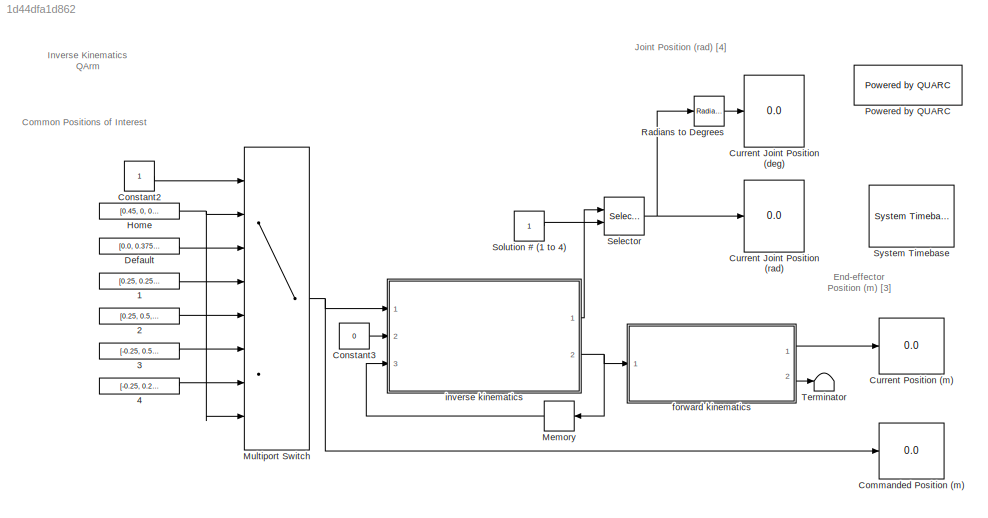
MODEL slx_1d44dfa1d862
KIND model
CONFIG AbsTol = auto
CONFIG EnableMultiTasking = on
CONFIG FixedStep = 1/500
CONFIG MaxStep = auto
CONFIG MinStep = auto
CONFIG RelTol = 1e-3
CONFIG SampleTimeConstraint = Unconstrained
CONFIG SolverName = ode4
CONFIG StartTime = 0.0
CONFIG StopTime = inf
BLOCK [Constant] 1
  Value = [0.25, 0.25, 0.01]
BLOCK [Constant] 2
  Value = [0.25, 0.5, 0.01]
BLOCK [Constant] 3
  Value = [-0.25, 0.5, 0.01]
BLOCK [Constant] 4
  Value = [-0.25, 0.25, 0.01]
BLOCK [Display] Commanded Position (m)
  Ports = [1]
BLOCK [Constant] Constant2
BLOCK [Constant] Constant3
  Value = 0
BLOCK [Display] Current Joint Position (deg)
  Ports = [1]
BLOCK [Display] Current Joint Position (rad)
  Ports = [1]
BLOCK [Display] Current Position (m)
  Ports = [1]
BLOCK [Constant] Default
  Value = [0.0, 0.375, 0.1]
BLOCK [Constant] Home
  Value = [0.45, 0, 0.49]
BLOCK [Memory] Memory
  InitialCondition = [0 0 0 0]
  NameLocation = top
BLOCK [MultiPortSwitch] Multiport Switch
  DataPortForDefault = Additional data port
  InputSameDT = off
  Inputs = 6
  Ports = [8, 1]
  SaturateOnIntegerOverflow = off
BLOCK [Reference] Powered by QUARC  REF=quarc_library/Logos/Powered by QUARC
  Ports = []
  SourceBlock = quarc_library/Logos/Powered by QUARC
  SourceProductName = QUARC Targets
  SourceType = Powered by QUARC
BLOCK [Reference] Radians to Degrees  REF=simulink_extras/Transformations/Radians
to Degrees
  Ports = [1, 1]
  SourceBlock = simulink_extras/Transformations/Radians\nto Degrees
  SourceType = RadiansToDegrees
BLOCK [Selector] Selector
  IndexOptions = Select all,Index vector (port)
  Indices = [1 3],1
  InputPortWidth = 3
  NumberOfDimensions = 2
  OutputSizes = 1,1
  Ports = [2, 1]
BLOCK [Constant] Solution # (1 to 4)
  NameLocation = top
BLOCK [Reference] System Timebase  REF=quarc_library/Advanced/Timing/System Timebase
  Ports = []
  SourceBlock = quarc_library/Advanced/Timing/System Timebase
  SourceProductName = QUARC Targets
  SourceType = System Timebase
BLOCK [Terminator] Terminator
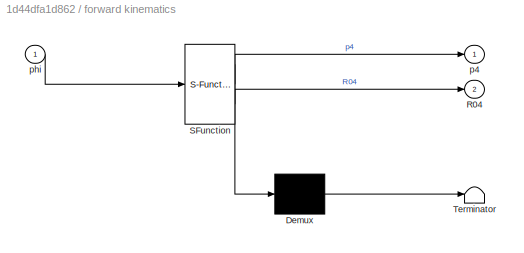
BLOCK [SubSystem] forward kinematics
  ErrorFcn = Stateflow.Translate.translate
  PermitHierarchicalResolution = ExplicitOnly
  Ports = [1, 2]
  SFBlockType = MATLAB Function
  TreatAsAtomicUnit = on
BLOCK [Demux] forward kinematics/ Demux 
  Outputs = 1
  Ports = [1, 1]
BLOCK [S-Function] forward kinematics/ SFunction 
  EnableBusSupport = off
  FunctionName = sf_sfun
  PortCounts = [1 3]
  Ports = [1, 3]
  SFcnIsStateOwnerBlock = off
  SFunctionDeploymentMode = off
  Tag = Stateflow S-Function 3
BLOCK [Terminator] forward kinematics/ Terminator 
BLOCK [Outport] forward kinematics/R04
  Port = 2
  VectorParamsAs1DForOutWhenUnconnected = off
BLOCK [Outport] forward kinematics/p4
  VectorParamsAs1DForOutWhenUnconnected = off
BLOCK [Inport] forward kinematics/phi
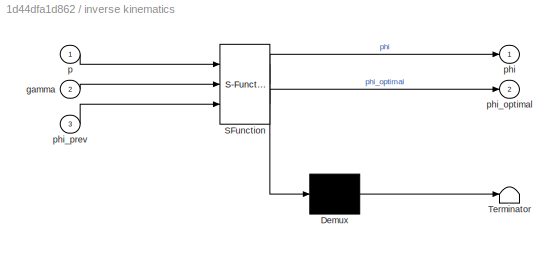
BLOCK [SubSystem] inverse kinematics
  ErrorFcn = Stateflow.Translate.translate
  NameLocation = top
  PermitHierarchicalResolution = ExplicitOnly
  Ports = [3, 2]
  SFBlockType = MATLAB Function
  TreatAsAtomicUnit = on
BLOCK [Demux] inverse kinematics/ Demux 
  Outputs = 1
  Ports = [1, 1]
BLOCK [S-Function] inverse kinematics/ SFunction 
  EnableBusSupport = off
  FunctionName = sf_sfun
  PortCounts = [3 3]
  Ports = [3, 3]
  SFcnIsStateOwnerBlock = off
  SFunctionDeploymentMode = off
  Tag = Stateflow S-Function 4
BLOCK [Terminator] inverse kinematics/ Terminator 
BLOCK [Inport] inverse kinematics/gamma
  Port = 2
BLOCK [Inport] inverse kinematics/p
BLOCK [Outport] inverse kinematics/phi
  VectorParamsAs1DForOutWhenUnconnected = off
BLOCK [Outport] inverse kinematics/phi_optimal
  Port = 2
  VectorParamsAs1DForOutWhenUnconnected = off
BLOCK [Inport] inverse kinematics/phi_prev
  Port = 3
ANNOTATION (root): Inverse Kinematics QArm
ANNOTATION (root): Common Positions of Interest
ANNOTATION (root): End-effector Position (m) [3]
ANNOTATION (root): Joint Position (rad) [4]
LINE 1:1 -> Multiport Switch:4
LINE 2:1 -> Multiport Switch:5
LINE 3:1 -> Multiport Switch:6
LINE 4:1 -> Multiport Switch:7
LINE Constant2:1 -> Multiport Switch:1
LINE Constant3:1 -> inverse kinematics:2
LINE Default:1 -> Multiport Switch:3
NET Home:1 -> Multiport Switch:2, Multiport Switch:8
LINE Memory:1 -> inverse kinematics:3
NET Multiport Switch:1 -> Commanded Position (m):1, inverse kinematics:1
LINE Radians to Degrees:1 -> Current Joint Position (deg):1
NET Selector:1 -> Current Joint Position (rad):1, Radians to Degrees:1
LINE Solution # (1 to 4):1 -> Selector:2
LINE forward kinematics:1 -> Current Position (m):1
LINE forward kinematics:2 -> Terminator:1
LINE inverse kinematics:1 -> Selector:1
NET inverse kinematics:2 -> Memory:1, forward kinematics:1
note: NET lines group one-source signal fan-out (src -> all destinations, sorted); 1:1 wires keep LINE
CHART forward kinematics states=1 transitions=1
  STATE_LABEL 'eML_blk_kernel()'
  STATE_LABEL 'SCRIPT:\nfunction [p4, R04] = qarmForwardKinematics(phi)\n\n%% QUANSER_ARM_FPK\n% v 4.0 - 4th June 2020\n\n% REFERENCE: \n% Chapter 3. Forward Kinematics\n% Robot Dynamics and Control \n% Spong, Vidyasagar\n% 1989\n\n% INPUTS:\n% phi     : Alternate joint angles vector 4 x 1\n\n% OUTPUTS:\n% p4      : End-effector frame {4} position vector expressed in base frame {0}\n% R04     : rotation matrix from end-effector ...<+1869ch>'
CHART inverse kinematics states=1 transitions=1
  STATE_LABEL 'eML_blk_kernel()'
  STATE_LABEL 'SCRIPT:\nfunction [phi, phi_optimal]  = qarmInverseKinematics(p, gamma, phi_prev)\n\n%% QUANSER_ARM_IPK\n% v 4.0 - 4th June 2020\n\n% REFERENCE: \n% Chapter 4. Inverse Kinematics\n% Robot Dynamics and Control \n% Spong, Vidyasagar\n% 1989\n\n% INPUTS:\n% p        : end-effector position vector expressed in base frame {0}\n% gamma    : wrist rotation angle gamma\n\n% OUTPUTS:\n% phi_optimal : Best solution dependin...<+1877ch>'
CHART  states=0 transitions=0
CHART  states=0 transitions=0
